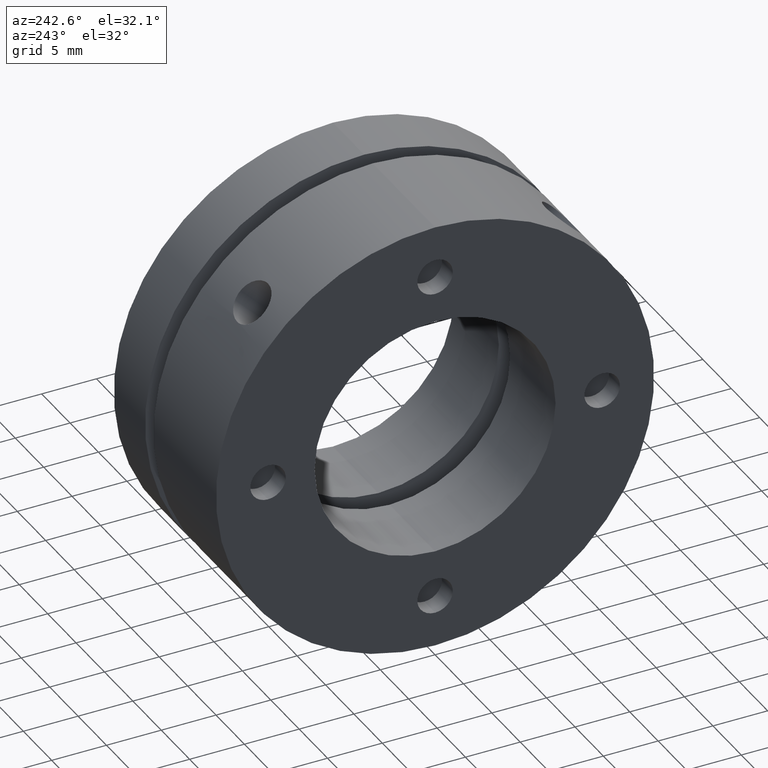
[diagram: clean part render]
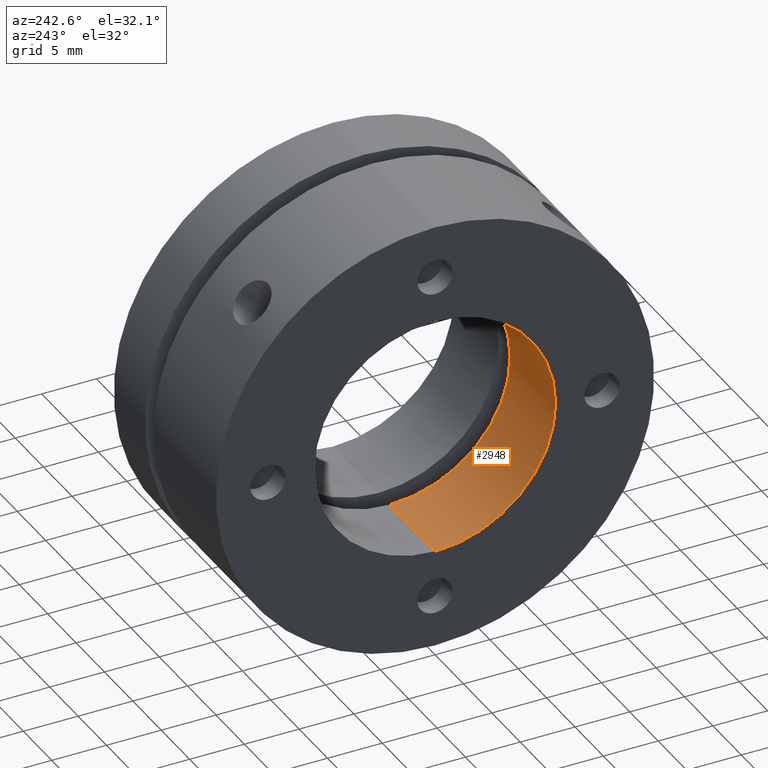
[diagram: same view with one face highlighted and labeled with its STEP entity id]
A machine part, auxiliary view. The second image highlights one B-rep face of the part: STEP entity #2948.
In plain terms, the highlighted cylindrical surface (partial cylindrical patch) has radius 11 mm, axis along (1, 0, 0).
Its self-contained STEP definition (entity closure, byte-faithful):
#390 = DIRECTION ( 'NONE',  ( -1.000000000000000000, -0.0000000000000000000, -0.0000000000000000000 ) ) ;
#393 = DIRECTION ( 'NONE',  ( 0.0000000000000000000, 0.0000000000000000000, -1.000000000000000000 ) ) ;
#394 = CARTESIAN_POINT ( 'NONE',  ( 8.000000000000024900, 0.0000000000000000000, 0.0000000000000000000 ) ) ;
#399 = DIRECTION ( 'NONE',  ( 1.000000000000000000, 0.0000000000000000000, 0.0000000000000000000 ) ) ;
#403 = CARTESIAN_POINT ( 'NONE',  ( 8.999999999999996400, 0.0000000000000000000, -11.00000000000000000 ) ) ;
#690 = EDGE_CURVE ( 'NONE', #3129, #1334, #1569, .T. ) ;
#691 = EDGE_CURVE ( 'NONE', #3129, #3136, #1573, .T. ) ;
#697 = EDGE_CURVE ( 'NONE', #3133, #3136, #1581, .T. ) ;
#698 = EDGE_CURVE ( 'NONE', #1334, #3133, #1582, .T. ) ;
#769 = CARTESIAN_POINT ( 'NONE',  ( 8.000000000000024900, 1.347111479062088400E-015, 11.00000000000000000 ) ) ;
#775 = CARTESIAN_POINT ( 'NONE',  ( 8.000000000000024900, 0.0000000000000000000, -11.00000000000000000 ) ) ;
#778 = CARTESIAN_POINT ( 'NONE',  ( -1.734723475976807100E-015, 1.347111479062088400E-015, 11.00000000000000000 ) ) ;
#801 = CARTESIAN_POINT ( 'NONE',  ( 8.999999999999996400, 0.0000000000000000000, 0.0000000000000000000 ) ) ;
#802 = DIRECTION ( 'NONE',  ( 1.000000000000000000, 0.0000000000000000000, 0.0000000000000000000 ) ) ;
#837 = DIRECTION ( 'NONE',  ( 0.0000000000000000000, 0.0000000000000000000, -1.000000000000000000 ) ) ;
#1029 = ORIENTED_EDGE ( 'NONE', *, *, #691, .T. ) ;
#1053 = ORIENTED_EDGE ( 'NONE', *, *, #698, .F. ) ;
#1055 = ORIENTED_EDGE ( 'NONE', *, *, #697, .F. ) ;
#1191 = ORIENTED_EDGE ( 'NONE', *, *, #690, .F. ) ;
#1334 = VERTEX_POINT ( 'NONE', #2525 ) ;
#1569 = CIRCLE ( 'NONE', #2312, 11.00000000000000000 ) ;
#1573 = LINE ( 'NONE', #3115, #1575 ) ;
#1575 = VECTOR ( 'NONE', #3114, 1000.000000000000000 ) ;
#1581 = CIRCLE ( 'NONE', #2317, 11.00000000000000000 ) ;
#1582 = LINE ( 'NONE', #403, #1584 ) ;
#1584 = VECTOR ( 'NONE', #399, 1000.000000000000000 ) ;
#1885 = EDGE_LOOP ( 'NONE', ( #1191, #1029, #1055, #1053 ) ) ;
#2312 = AXIS2_PLACEMENT_3D ( 'NONE', #3118, #3117, #3119 ) ;
#2317 = AXIS2_PLACEMENT_3D ( 'NONE', #394, #390, #393 ) ;
#2411 = AXIS2_PLACEMENT_3D ( 'NONE', #801, #802, #837 ) ;
#2525 = CARTESIAN_POINT ( 'NONE',  ( -1.734723475976807100E-015, 0.0000000000000000000, -11.00000000000000000 ) ) ;
#2689 = FACE_OUTER_BOUND ( 'NONE', #1885, .T. ) ;
#2702 = CYLINDRICAL_SURFACE ( 'NONE', #2411, 11.00000000000000000 ) ;
#2948 = ADVANCED_FACE ( 'NONE', ( #2689 ), #2702, .F. ) ;
#3114 = DIRECTION ( 'NONE',  ( 1.000000000000000000, 0.0000000000000000000, 0.0000000000000000000 ) ) ;
#3115 = CARTESIAN_POINT ( 'NONE',  ( 8.999999999999996400, 1.347111479062088400E-015, 11.00000000000000000 ) ) ;
#3117 = DIRECTION ( 'NONE',  ( 1.000000000000000000, 0.0000000000000000000, 0.0000000000000000000 ) ) ;
#3118 = CARTESIAN_POINT ( 'NONE',  ( -1.734723475976807100E-015, 0.0000000000000000000, 0.0000000000000000000 ) ) ;
#3119 = DIRECTION ( 'NONE',  ( 0.0000000000000000000, 0.0000000000000000000, -1.000000000000000000 ) ) ;
#3129 = VERTEX_POINT ( 'NONE', #778 ) ;
#3133 = VERTEX_POINT ( 'NONE', #775 ) ;
#3136 = VERTEX_POINT ( 'NONE', #769 ) ;